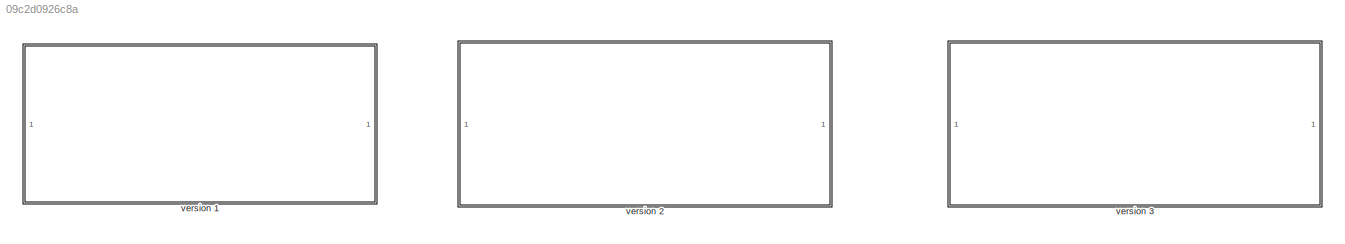
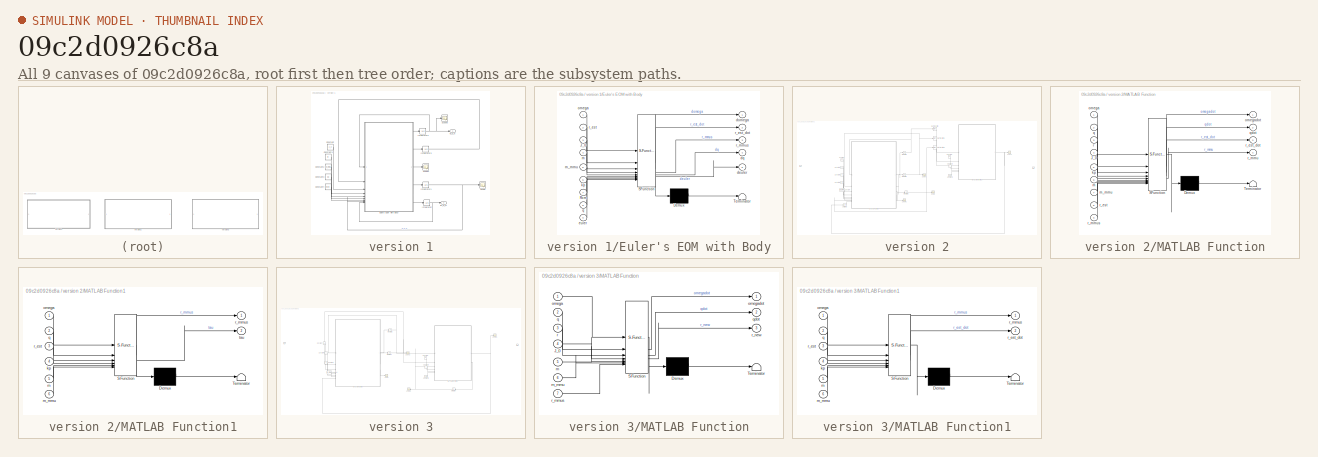
[diagram: thumbnail index - all 9 canvases of the model, root first then tree order]
MODEL slx_09c2d0926c8a
KIND model
CONFIG AbsTol = 1e-8
CONFIG EnableMultiTasking = off
CONFIG FixedStep = 0.01
CONFIG MaxStep = 0.01
CONFIG MinStep = auto
CONFIG RelTol = 1e-8
CONFIG SampleTimeConstraint = Unconstrained
CONFIG SolverName = ode4
CONFIG StartTime = 0.0
CONFIG StopTime = 30
BLOCK [SubSystem] version 1
  Commented = on
BLOCK [Constant] version 1/Constant
  Value = J_0
BLOCK [Constant] version 1/Constant1
  Value = m
BLOCK [Constant] version 1/Constant2
  Value = m_mmu
BLOCK [Constant] version 1/Constant3
  Value = kp
BLOCK [Constant] version 1/Constant4
  Value = Rcm
BLOCK [Outport] version 1/EA_b_N
  Port = 2
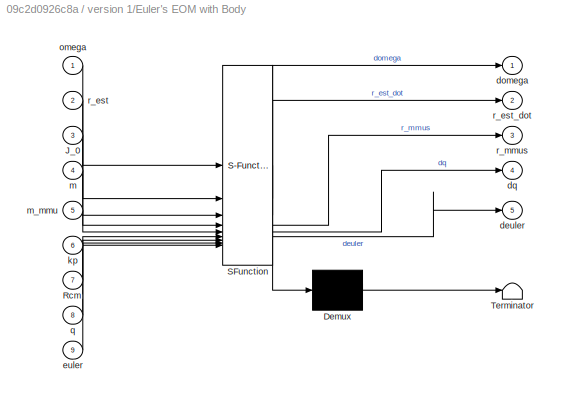
BLOCK [SubSystem] version 1/Euler's EOM with Body
  ErrorFcn = Stateflow.Translate.translate
  LibrarySourceBlock = simulink/User-Defined\nFunctions/MATLAB Function
  PermitHierarchicalResolution = ExplicitOnly
  SFBlockType = MATLAB Function
  TreatAsAtomicUnit = on
BLOCK [Demux] version 1/Euler's EOM with Body/ Demux 
  Outputs = 1
BLOCK [S-Function] version 1/Euler's EOM with Body/ SFunction 
  EnableBusSupport = on
  FunctionName = sf_sfun
  PortCounts = [9 6]
  SFcnIsStateOwnerBlock = off
  SFunctionDeploymentMode = off
  Tag = Stateflow S-Function 3
BLOCK [Terminator] version 1/Euler's EOM with Body/ Terminator 
BLOCK [Inport] version 1/Euler's EOM with Body/J_0
  Port = 3
BLOCK [Inport] version 1/Euler's EOM with Body/Rcm
  Port = 7
BLOCK [Outport] version 1/Euler's EOM with Body/deuler
  Port = 5
BLOCK [Outport] version 1/Euler's EOM with Body/domega
BLOCK [Outport] version 1/Euler's EOM with Body/dq
  Port = 4
BLOCK [Inport] version 1/Euler's EOM with Body/euler
  Port = 9
BLOCK [Inport] version 1/Euler's EOM with Body/kp
  Port = 6
BLOCK [Inport] version 1/Euler's EOM with Body/m
  Port = 4
BLOCK [Inport] version 1/Euler's EOM with Body/m_mmu
  Port = 5
BLOCK [Inport] version 1/Euler's EOM with Body/omega
BLOCK [Inport] version 1/Euler's EOM with Body/q
  Port = 8
BLOCK [Inport] version 1/Euler's EOM with Body/r_est
  Port = 2
BLOCK [Outport] version 1/Euler's EOM with Body/r_est_dot
  Port = 2
BLOCK [Outport] version 1/Euler's EOM with Body/r_mmus
  Port = 3
BLOCK [Integrator] version 1/Integrator
  InitialCondition = EA_0
BLOCK [Integrator] version 1/Integrator1
  InitialCondition = q_0
BLOCK [Integrator] version 1/Integrator2
  InitialCondition = omega_0
BLOCK [Integrator] version 1/Integrator3
  InitialCondition = r_est_0
BLOCK [Scope] version 1/Scope
  Floating = off
  NumInputPorts = 1
  ScopeSpecificationString = Simulink.scopes.TimeScopeBlockCfg('CurrentConfiguration', extmgr.ConfigurationSet(extmgr.Configuration('Core','General UI',true),extmgr.Configuration('Core','Source UI',true),extmgr.Configuration('Sources','WiredSimulink',true,'DataLoggingVariableName','q_b_N','DataLogging',true,'DataLoggingSaveFormat','StructureWithTime'),extmgr.Configuration('Visuals','Time Domain',true,'SerializedDisplays',{str...<+1561ch>
BLOCK [Scope] version 1/Scope1
  Floating = off
  NumInputPorts = 1
  ScopeSpecificationString = Simulink.scopes.TimeScopeBlockCfg('CurrentConfiguration', extmgr.ConfigurationSet(extmgr.Configuration('Core','General UI',true),extmgr.Configuration('Core','Source UI',true),extmgr.Configuration('Sources','WiredSimulink',true,'DataLoggingVariableName','ScopeData1'),extmgr.Configuration('Visuals','Time Domain',true,'SerializedDisplays',{struct('MinYLimReal','-854.49837','MaxYLimReal','290.98656','...<+1592ch>
BLOCK [Scope] version 1/Scope5
  Floating = off
  NumInputPorts = 1
  ScopeSpecificationString = Simulink.scopes.TimeScopeBlockCfg('CurrentConfiguration', extmgr.ConfigurationSet(extmgr.Configuration('Core','General UI',true),extmgr.Configuration('Core','Source UI',true),extmgr.Configuration('Sources','WiredSimulink',true,'DataLoggingVariableName','w_b_out','DataLogging',true,'DataLoggingSaveFormat','StructureWithTime'),extmgr.Configuration('Visuals','Time Domain',true,'SerializedDisplays',{s...<+1586ch>
BLOCK [Outport] version 1/w_b_N
BLOCK [SubSystem] version 2
  Commented = on
BLOCK [Constant] version 2/Constant
  Value = Rcm
BLOCK [Constant] version 2/Constant1
  Value = kp
BLOCK [Constant] version 2/Constant2
  Value = m
BLOCK [Constant] version 2/Constant3
  Value = m_mmu
BLOCK [Constant] version 2/Constant4
  Value = J_0
BLOCK [Constant] version 2/Constant5
  Value = kp
BLOCK [Constant] version 2/Constant6
  Value = m
BLOCK [Constant] version 2/Constant7
  Value = m_mmu
BLOCK [Inport] version 2/In1
BLOCK [Integrator] version 2/Integrator1
  InitialCondition = q_0
BLOCK [Integrator] version 2/Integrator2
  InitialCondition = omega_0
BLOCK [Integrator] version 2/Integrator3
  InitialCondition = r_est_0
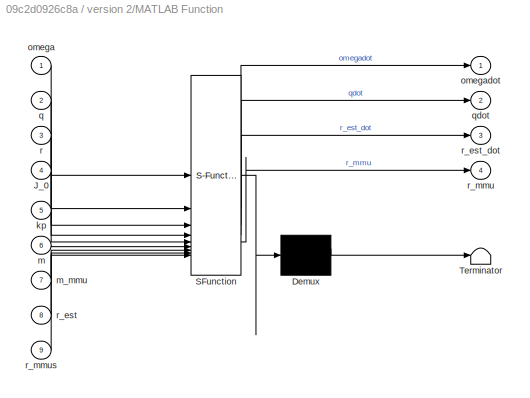
BLOCK [SubSystem] version 2/MATLAB Function
  ErrorFcn = Stateflow.Translate.translate
  PermitHierarchicalResolution = ExplicitOnly
  SFBlockType = MATLAB Function
  TreatAsAtomicUnit = on
BLOCK [Demux] version 2/MATLAB Function/ Demux 
  Outputs = 1
BLOCK [S-Function] version 2/MATLAB Function/ SFunction 
  EnableBusSupport = on
  FunctionName = sf_sfun
  PortCounts = [9 5]
  SFcnIsStateOwnerBlock = off
  SFunctionDeploymentMode = off
  Tag = Stateflow S-Function 2
BLOCK [Terminator] version 2/MATLAB Function/ Terminator 
BLOCK [Inport] version 2/MATLAB Function/J_0
  Port = 4
BLOCK [Inport] version 2/MATLAB Function/kp
  Port = 5
BLOCK [Inport] version 2/MATLAB Function/m
  Port = 6
BLOCK [Inport] version 2/MATLAB Function/m_mmu
  Port = 7
BLOCK [Inport] version 2/MATLAB Function/omega
BLOCK [Outport] version 2/MATLAB Function/omegadot
BLOCK [Inport] version 2/MATLAB Function/q
  Port = 2
BLOCK [Outport] version 2/MATLAB Function/qdot
  Port = 2
BLOCK [Inport] version 2/MATLAB Function/r
  Port = 3
BLOCK [Inport] version 2/MATLAB Function/r_est
  Port = 8
BLOCK [Outport] version 2/MATLAB Function/r_est_dot
  Port = 3
BLOCK [Outport] version 2/MATLAB Function/r_mmu
  Port = 4
BLOCK [Inport] version 2/MATLAB Function/r_mmus
  Port = 9
BLOCK [SubSystem] version 2/MATLAB Function1
  ErrorFcn = Stateflow.Translate.translate
  PermitHierarchicalResolution = ExplicitOnly
  SFBlockType = MATLAB Function
  TreatAsAtomicUnit = on
BLOCK [Demux] version 2/MATLAB Function1/ Demux 
  Outputs = 1
BLOCK [S-Function] version 2/MATLAB Function1/ SFunction 
  EnableBusSupport = on
  FunctionName = sf_sfun
  PortCounts = [6 3]
  SFcnIsStateOwnerBlock = off
  SFunctionDeploymentMode = off
  Tag = Stateflow S-Function 1
BLOCK [Terminator] version 2/MATLAB Function1/ Terminator 
BLOCK [Inport] version 2/MATLAB Function1/kp
  Port = 4
BLOCK [Inport] version 2/MATLAB Function1/m
  Port = 5
BLOCK [Inport] version 2/MATLAB Function1/m_mmu
  Port = 6
BLOCK [Inport] version 2/MATLAB Function1/omega
BLOCK [Inport] version 2/MATLAB Function1/q
  Port = 2
BLOCK [Inport] version 2/MATLAB Function1/r_est
  Port = 3
BLOCK [Outport] version 2/MATLAB Function1/r_mmus
BLOCK [Outport] version 2/MATLAB Function1/tau
  Port = 2
BLOCK [Outport] version 2/Out1
BLOCK [RateTransition] version 2/Rate Transition
  InitialCondition = omega_0
  OutPortSampleTime = control_sample
BLOCK [RateTransition] version 2/Rate Transition1
  InitialCondition = q_0
  OutPortSampleTime = control_sample
BLOCK [RateTransition] version 2/Rate Transition2
  InitialCondition = r_est_0
  OutPortSampleTime = control_sample
BLOCK [Scope] version 2/Scope
  Floating = off
  NumInputPorts = 1
  ScopeSpecificationString = Simulink.scopes.TimeScopeBlockCfg('CurrentConfiguration', extmgr.ConfigurationSet(extmgr.Configuration('Core','General UI',true),extmgr.Configuration('Core','Source UI',true),extmgr.Configuration('Sources','WiredSimulink',true,'DataLoggingVariableName','ScopeData2'),extmgr.Configuration('Visuals','Time Domain',true,'SerializedDisplays',{struct('MinYLimReal','-0.00434','MaxYLimReal','0.00147','YLab...<+1523ch>
BLOCK [Scope] version 2/Scope1
  Floating = off
  NumInputPorts = 1
  ScopeSpecificationString = Simulink.scopes.TimeScopeBlockCfg('CurrentConfiguration', extmgr.ConfigurationSet(extmgr.Configuration('Core','General UI',true),extmgr.Configuration('Core','Source UI',true),extmgr.Configuration('Sources','WiredSimulink',true,'DataLoggingVariableName','ScopeData3'),extmgr.Configuration('Visuals','Time Domain',true,'SerializedDisplays',{struct('MinYLimReal','-0.01112','MaxYLimReal','0.06314','YLab...<+1559ch>
BLOCK [Scope] version 2/Scope2
  Floating = off
  NumInputPorts = 1
  ScopeSpecificationString = Simulink.scopes.TimeScopeBlockCfg('CurrentConfiguration', extmgr.ConfigurationSet(extmgr.Configuration('Core','General UI',true),extmgr.Configuration('Core','Source UI',true),extmgr.Configuration('Sources','WiredSimulink',true,'DataLoggingVariableName','ScopeData4'),extmgr.Configuration('Visuals','Time Domain',true,'SerializedDisplays',{struct('MinYLimReal','-0.12501','MaxYLimReal','1.125','YLabel...<+1501ch>
BLOCK [Scope] version 2/Scope3
  Floating = off
  NumInputPorts = 1
  ScopeSpecificationString = Simulink.scopes.TimeScopeBlockCfg('CurrentConfiguration', extmgr.ConfigurationSet(extmgr.Configuration('Core','General UI',true),extmgr.Configuration('Core','Source UI',true),extmgr.Configuration('Sources','WiredSimulink',true,'DataLoggingVariableName','ScopeData5'),extmgr.Configuration('Visuals','Time Domain',true,'SerializedDisplays',{struct('MinYLimReal','-0.03015','MaxYLimReal','0.0888','YLabe...<+1547ch>
BLOCK [UnitDelay] version 2/Unit Delay
  HasFrameUpgradeWarning = on
  InitialCondition = [0 0 0]'
  SampleTime = -1
BLOCK [SubSystem] version 3
BLOCK [Constant] version 3/Constant
  Value = r_b_0
BLOCK [Constant] version 3/Constant1
  Value = kp
BLOCK [Constant] version 3/Constant2
  Value = m
BLOCK [Constant] version 3/Constant3
  Value = m_mmu
BLOCK [Constant] version 3/Constant4
  Value = J_0
BLOCK [Constant] version 3/Constant6
  Value = m
BLOCK [Constant] version 3/Constant7
  Value = m_mmu
BLOCK [Inport] version 3/In1
BLOCK [Integrator] version 3/Integrator
  InitialCondition = r_est_0
  NameLocation = top
BLOCK [Integrator] version 3/Integrator1
  InitialCondition = q_0
BLOCK [Integrator] version 3/Integrator2
  InitialCondition = omega_0
BLOCK [SubSystem] version 3/MATLAB Function
  ErrorFcn = Stateflow.Translate.translate
  PermitHierarchicalResolution = ExplicitOnly
  SFBlockType = MATLAB Function
  TreatAsAtomicUnit = on
BLOCK [Demux] version 3/MATLAB Function/ Demux 
  Outputs = 1
BLOCK [S-Function] version 3/MATLAB Function/ SFunction 
  EnableBusSupport = on
  FunctionName = sf_sfun
  PortCounts = [7 4]
  SFcnIsStateOwnerBlock = off
  SFunctionDeploymentMode = off
  Tag = Stateflow S-Function 4
BLOCK [Terminator] version 3/MATLAB Function/ Terminator 
BLOCK [Inport] version 3/MATLAB Function/J_0
  Port = 4
BLOCK [Inport] version 3/MATLAB Function/m
  Port = 5
BLOCK [Inport] version 3/MATLAB Function/m_mmu
  Port = 6
BLOCK [Inport] version 3/MATLAB Function/omega
BLOCK [Outport] version 3/MATLAB Function/omegadot
BLOCK [Inport] version 3/MATLAB Function/q
  Port = 2
BLOCK [Outport] version 3/MATLAB Function/qdot
  Port = 2
BLOCK [Inport] version 3/MATLAB Function/r
  Port = 3
BLOCK [Inport] version 3/MATLAB Function/r_mmus
  Port = 7
BLOCK [Outport] version 3/MATLAB Function/r_new
  Port = 3
BLOCK [SubSystem] version 3/MATLAB Function1
  ErrorFcn = Stateflow.Translate.translate
  PermitHierarchicalResolution = ExplicitOnly
  SFBlockType = MATLAB Function
  TreatAsAtomicUnit = on
BLOCK [Demux] version 3/MATLAB Function1/ Demux 
  Outputs = 1
BLOCK [S-Function] version 3/MATLAB Function1/ SFunction 
  EnableBusSupport = on
  FunctionName = sf_sfun
  PortCounts = [6 3]
  SFcnIsStateOwnerBlock = off
  SFunctionDeploymentMode = off
  Tag = Stateflow S-Function 5
BLOCK [Terminator] version 3/MATLAB Function1/ Terminator 
BLOCK [Inport] version 3/MATLAB Function1/kp
  Port = 4
BLOCK [Inport] version 3/MATLAB Function1/m
  Port = 5
BLOCK [Inport] version 3/MATLAB Function1/m_mmu
  Port = 6
BLOCK [Inport] version 3/MATLAB Function1/omega
BLOCK [Inport] version 3/MATLAB Function1/q
  Port = 2
BLOCK [Inport] version 3/MATLAB Function1/r_est
  Port = 3
BLOCK [Outport] version 3/MATLAB Function1/r_est_dot
  Port = 2
BLOCK [Outport] version 3/MATLAB Function1/r_mmus
BLOCK [Outport] version 3/Out1
BLOCK [Scope] version 3/Scope
  Floating = off
  NumInputPorts = 1
  ScopeSpecificationString = Simulink.scopes.TimeScopeBlockCfg('CurrentConfiguration', extmgr.ConfigurationSet(extmgr.Configuration('Core','General UI',true),extmgr.Configuration('Core','Source UI',true),extmgr.Configuration('Sources','WiredSimulink',true,'DataLoggingVariableName','ScopeData6'),extmgr.Configuration('Visuals','Time Domain',true,'SerializedDisplays',{struct('MinYLimReal','-0.00581','MaxYLimReal','0.00225','YLab...<+1523ch>
BLOCK [Scope] version 3/Scope1
  Floating = off
  NumInputPorts = 1
  ScopeSpecificationString = Simulink.scopes.TimeScopeBlockCfg('CurrentConfiguration', extmgr.ConfigurationSet(extmgr.Configuration('Core','General UI',true),extmgr.Configuration('Core','Source UI',true),extmgr.Configuration('Sources','WiredSimulink',true,'DataLoggingVariableName','ScopeData9'),extmgr.Configuration('Visuals','Time Domain',true,'SerializedDisplays',{struct('MinYLimReal','-0.01135','MaxYLimReal','0.10215','YLab...<+1581ch>
BLOCK [Scope] version 3/Scope2
  Floating = off
  NumInputPorts = 1
  ScopeSpecificationString = Simulink.scopes.TimeScopeBlockCfg('CurrentConfiguration', extmgr.ConfigurationSet(extmgr.Configuration('Core','General UI',true),extmgr.Configuration('Core','Source UI',true),extmgr.Configuration('Sources','WiredSimulink',true,'DataLoggingVariableName','ScopeData4'),extmgr.Configuration('Visuals','Time Domain',true,'SerializedDisplays',{struct('MinYLimReal','-0.12501','MaxYLimReal','1.125','YLabel...<+1501ch>
BLOCK [Scope] version 3/Scope3
  Floating = off
  NameLocation = top
  NumInputPorts = 1
  ScopeSpecificationString = Simulink.scopes.TimeScopeBlockCfg('CurrentConfiguration', extmgr.ConfigurationSet(extmgr.Configuration('Core','General UI',true),extmgr.Configuration('Core','Source UI',true),extmgr.Configuration('Sources','WiredSimulink',true,'DataLoggingVariableName','ScopeData7'),extmgr.Configuration('Visuals','Time Domain',true,'SerializedDisplays',{struct('MinYLimReal','-0.005','MaxYLimReal','0.00056','YLabel...<+1482ch>
LINE version 1/Constant1:1 -> version 1/Euler's EOM with Body:4
LINE version 1/Constant2:1 -> version 1/Euler's EOM with Body:5
LINE version 1/Constant3:1 -> version 1/Euler's EOM with Body:6
LINE version 1/Constant4:1 -> version 1/Euler's EOM with Body:7
LINE version 1/Constant:1 -> version 1/Euler's EOM with Body:3
LINE version 1/Euler's EOM with Body:1 -> version 1/Integrator2:1
LINE version 1/Euler's EOM with Body:2 -> version 1/Integrator3:1
LINE version 1/Euler's EOM with Body:3 -> version 1/Scope1:1
LINE version 1/Euler's EOM with Body:4 -> version 1/Integrator1:1
LINE version 1/Euler's EOM with Body:5 -> version 1/Integrator:1
NET version 1/Integrator1:1 -> version 1/Euler's EOM with Body:8, version 1/Scope:1
NET version 1/Integrator2:1 -> version 1/Euler's EOM with Body:1, version 1/Scope5:1, version 1/w_b_N:1
LINE version 1/Integrator3:1 -> version 1/Euler's EOM with Body:2
NET version 1/Integrator:1 -> version 1/EA_b_N:1, version 1/Euler's EOM with Body:9
LINE version 2/Constant1:1 -> version 2/MATLAB Function1:4
LINE version 2/Constant2:1 -> version 2/MATLAB Function1:5
LINE version 2/Constant3:1 -> version 2/MATLAB Function1:6
LINE version 2/Constant4:1 -> version 2/MATLAB Function:4
LINE version 2/Constant5:1 -> version 2/MATLAB Function:5
LINE version 2/Constant6:1 -> version 2/MATLAB Function:6
LINE version 2/Constant7:1 -> version 2/MATLAB Function:7
LINE version 2/Constant:1 -> version 2/MATLAB Function:3
NET version 2/Integrator1:1 -> version 2/MATLAB Function:2, version 2/Rate Transition1:1, version 2/Scope2:1
NET version 2/Integrator2:1 -> version 2/MATLAB Function:1, version 2/Rate Transition:1
NET version 2/Integrator3:1 -> version 2/MATLAB Function:8, version 2/Rate Transition2:1, version 2/Scope:1
NET version 2/MATLAB Function1:1 -> version 2/Scope1:1, version 2/Unit Delay:1
LINE version 2/MATLAB Function:1 -> version 2/Integrator2:1
LINE version 2/MATLAB Function:2 -> version 2/Integrator1:1
LINE version 2/MATLAB Function:3 -> version 2/Integrator3:1
LINE version 2/MATLAB Function:4 -> version 2/Scope3:1
LINE version 2/Rate Transition1:1 -> version 2/MATLAB Function1:2
LINE version 2/Rate Transition2:1 -> version 2/MATLAB Function1:3
LINE version 2/Rate Transition:1 -> version 2/MATLAB Function1:1
LINE version 2/Unit Delay:1 -> version 2/MATLAB Function:9
LINE version 3/Constant1:1 -> version 3/MATLAB Function1:4
LINE version 3/Constant2:1 -> version 3/MATLAB Function1:5
LINE version 3/Constant3:1 -> version 3/MATLAB Function1:6
LINE version 3/Constant4:1 -> version 3/MATLAB Function:4
LINE version 3/Constant6:1 -> version 3/MATLAB Function:5
LINE version 3/Constant7:1 -> version 3/MATLAB Function:6
LINE version 3/Constant:1 -> version 3/MATLAB Function:3
NET version 3/Integrator1:1 -> version 3/MATLAB Function1:2, version 3/MATLAB Function:2, version 3/Scope2:1
NET version 3/Integrator2:1 -> version 3/MATLAB Function1:1, version 3/MATLAB Function:1
NET version 3/Integrator:1 -> version 3/MATLAB Function1:3, version 3/Scope3:1
NET version 3/MATLAB Function1:1 -> version 3/MATLAB Function:7, version 3/Scope1:1
LINE version 3/MATLAB Function1:2 -> version 3/Integrator:1
LINE version 3/MATLAB Function:1 -> version 3/Integrator2:1
LINE version 3/MATLAB Function:2 -> version 3/Integrator1:1
LINE version 3/MATLAB Function:3 -> version 3/Scope:1
note: NET lines group one-source signal fan-out (src -> all destinations, sorted); 1:1 wires keep LINE
CHART version 3/MATLAB Function states=1 transitions=1
  STATE_LABEL 'eML_blk_kernel()'
  STATE_LABEL 'SCRIPT:\nfunction [omegadot, qdot,r_new] = fcn(omega,q,r,J_0,m,m_mmu,r_mmus)\n% Equations of motion developed in the work of Chesi.\n\ng = 9.81; % \n\n\n% Quaternion rates\nqdot = 0.5*[0 -omega(1) -omega(2) -omega(3);\n             omega(1) 0 omega(3) -omega(2);\n             omega(2) -omega(3) 0 omega(1);\n             omega(3) omega(2) -omega(1) 0]*q;\n\n% Gravity vector in body-frame\nRbi = [2*q(1)^2-1+2*q(2...<+1255ch>'
CHART version 3/MATLAB Function1 states=1 transitions=1
  STATE_LABEL 'eML_blk_kernel()'
  STATE_LABEL "SCRIPT:\nfunction [r_mmus,r_est_dot] = fcn(omega,q,r_est,kp,m,m_mmu)\n    Rbi = [2*q(1)^2-1+2*q(2)^2 2*q(2)*q(3)-2*q(1)*q(4) 2*q(2)*q(4)+2*q(1)*q(3);\n           2*q(2)*q(3)+2*q(1)*q(4) 2*q(1)^2-1+2*q(3)^2 2*q(3)*q(4)-2*q(1)*q(2);\n           2*q(2)*q(4)-2*q(1)*q(3) 2*q(3)*q(4)+2*q(1)*q(2) 2*q(1)^2-1+2*q(4)^2];\n\n    g_b = Rbi' * [0; 0; -9.81];\n\n\n    % Projection operator\n    P = eye(3) - g_b*g_b'/norm...<+337ch>"
CHART version 2/MATLAB Function1 states=1 transitions=1
  STATE_LABEL 'eML_blk_kernel()'
  STATE_LABEL "SCRIPT:\nfunction [r_mmus,tau] = fcn(omega,q,r_est,kp,m,m_mmu)\n    Rbi = [2*q(1)^2-1+2*q(2)^2 2*q(2)*q(3)-2*q(1)*q(4) 2*q(2)*q(4)+2*q(1)*q(3);\n           2*q(2)*q(3)+2*q(1)*q(4) 2*q(1)^2-1+2*q(3)^2 2*q(3)*q(4)-2*q(1)*q(2);\n           2*q(2)*q(4)-2*q(1)*q(3) 2*q(3)*q(4)+2*q(1)*q(2) 2*q(1)^2-1+2*q(4)^2];\n\n    gb = Rbi' * [0; 0; -9.81];\n    gbcross = [0 -gb(3) gb(2);\n               gb(3) 0 -gb(1);\n   ...<+362ch>"
CHART version 2/MATLAB Function states=1 transitions=1
  STATE_LABEL 'eML_blk_kernel()'
  STATE_LABEL 'SCRIPT:\nfunction [omegadot, qdot, r_est_dot,r_mmu] = fcn(omega,q,r,J_0,kp,m,m_mmu,r_est,r_mmus)\n% Equations of motion developed in the work of Chesi.\n\ng = 9.81; % \n\n\n% Quaternion rates\nqdot = 0.5*[0 -omega(1) -omega(2) -omega(3);\n             omega(1) 0 omega(3) -omega(2);\n             omega(2) -omega(3) 0 omega(1);\n             omega(3) omega(2) -omega(1) 0]*q;\n\n% Gravity vector in body-frame\nRbi...<+1385ch>'
CHART version 1/Euler's EOM with Body states=1 transitions=1
  STATE_LABEL 'eML_blk_kernel()'
  STATE_LABEL "SCRIPT:\nfunction [domega,r_est_dot,r_mmus,dq,deuler] = fcn(omega,r_est,J_0,m,m_mmu,kp,Rcm,q,euler)\n\nRbi = [2*q(1)^2-1+2*q(2)^2 2*q(2)*q(3)-2*q(1)*q(4) 2*q(2)*q(4)+2*q(1)*q(3);\n       2*q(2)*q(3)+2*q(1)*q(4) 2*q(1)^2-1+2*q(3)^2 2*q(3)*q(4)-2*q(1)*q(2);\n       2*q(2)*q(4)-2*q(1)*q(3) 2*q(3)*q(4)+2*q(1)*q(2) 2*q(1)^2-1+2*q(4)^2];\n\ng_b = Rbi' * [0; 0; -9.81];\n\ng_b_cross = [0 -g_b(3) g_b(2);\n          ...<+1824ch>"
CHART  states=0 transitions=0
CHART  states=0 transitions=0
CHART  states=0 transitions=0
CHART  states=0 transitions=0
CHART  states=0 transitions=0
